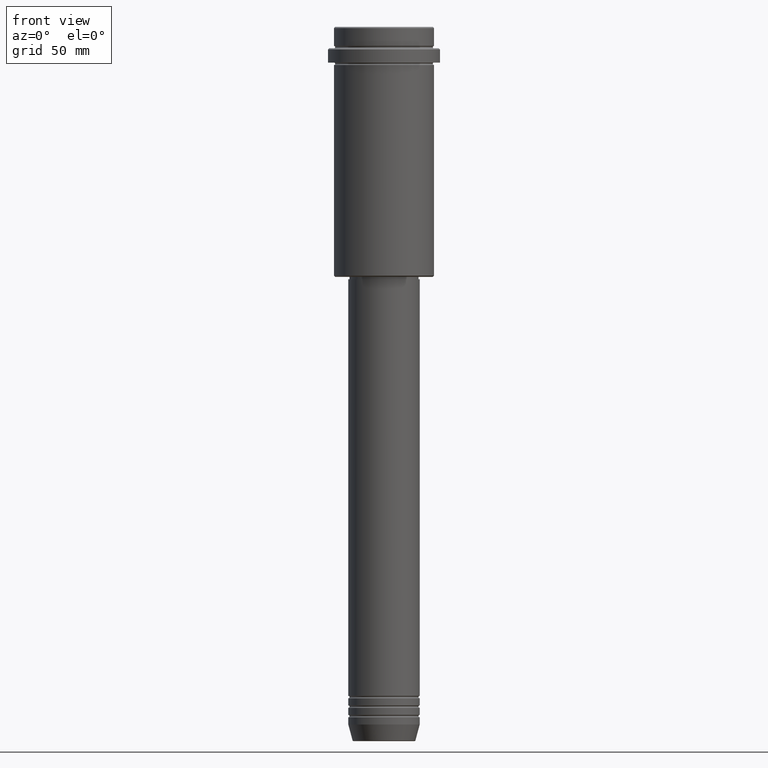
[diagram: clean part render]
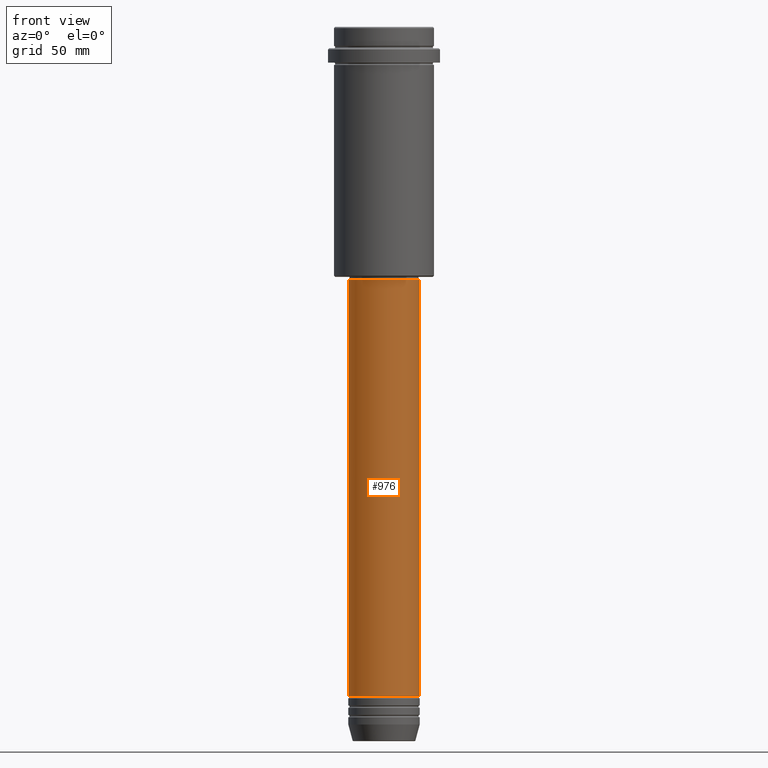
[diagram: same view with one face highlighted and labeled with its STEP entity id]
A machine part, front view. The second image highlights one B-rep face of the part: STEP entity #976.
In plain terms, the highlighted cylindrical surface (edge-blend (fillet) strip) has radius 15 mm, axis along (-0, -0, 1).
Its self-contained STEP definition (entity closure, byte-faithful):
#3 = EDGE_LOOP ( 'NONE', ( #490, #550, #466, #1261 ) ) ;
#137 = AXIS2_PLACEMENT_3D ( 'NONE', #232, #418, #222 ) ;
#222 = DIRECTION ( 'NONE',  ( 1.000000000000000000, 0.000000000000000000, 0.000000000000000000 ) ) ;
#228 = AXIS2_PLACEMENT_3D ( 'NONE', #350, #1356, #1044 ) ;
#232 = CARTESIAN_POINT ( 'NONE',  ( 0.000000000000000000, 0.000000000000000000, 0.000000000000000000 ) ) ;
#283 = VERTEX_POINT ( 'NONE', #499 ) ;
#298 = CARTESIAN_POINT ( 'NONE',  ( -15.00000000000000000, 1.836970198721029589E-15, 0.000000000000000000 ) ) ;
#350 = CARTESIAN_POINT ( 'NONE',  ( 0.000000000000000000, 0.000000000000000000, -280.9999999999999432 ) ) ;
#366 = AXIS2_PLACEMENT_3D ( 'NONE', #813, #471, #894 ) ;
#418 = DIRECTION ( 'NONE',  ( -0.000000000000000000, -0.000000000000000000, 1.000000000000000000 ) ) ;
#466 = ORIENTED_EDGE ( 'NONE', *, *, #796, .T. ) ;
#470 = VERTEX_POINT ( 'NONE', #1085 ) ;
#471 = DIRECTION ( 'NONE',  ( -0.000000000000000000, -0.000000000000000000, 1.000000000000000000 ) ) ;
#490 = ORIENTED_EDGE ( 'NONE', *, *, #1378, .F. ) ;
#499 = CARTESIAN_POINT ( 'NONE',  ( -15.00000000000000000, 1.836970198721029589E-15, -105.9999999999999289 ) ) ;
#528 = CIRCLE ( 'NONE', #228, 15.00000000000000000 ) ;
#550 = ORIENTED_EDGE ( 'NONE', *, *, #676, .T. ) ;
#625 = LINE ( 'NONE', #841, #1303 ) ;
#676 = EDGE_CURVE ( 'NONE', #1372, #470, #528, .T. ) ;
#687 = VERTEX_POINT ( 'NONE', #695 ) ;
#695 = CARTESIAN_POINT ( 'NONE',  ( 15.00000000000000000, 0.000000000000000000, -105.9999999999999289 ) ) ;
#721 = EDGE_CURVE ( 'NONE', #283, #687, #808, .T. ) ;
#741 = DIRECTION ( 'NONE',  ( -0.000000000000000000, -0.000000000000000000, 1.000000000000000000 ) ) ;
#755 = FACE_OUTER_BOUND ( 'NONE', #3, .T. ) ;
#796 = EDGE_CURVE ( 'NONE', #470, #687, #625, .T. ) ;
#808 = CIRCLE ( 'NONE', #366, 15.00000000000000000 ) ;
#813 = CARTESIAN_POINT ( 'NONE',  ( 0.000000000000000000, 0.000000000000000000, -105.9999999999999289 ) ) ;
#839 = CARTESIAN_POINT ( 'NONE',  ( -15.00000000000000000, 1.836970198721029589E-15, -280.9999999999999432 ) ) ;
#841 = CARTESIAN_POINT ( 'NONE',  ( 15.00000000000000000, 0.000000000000000000, 0.000000000000000000 ) ) ;
#894 = DIRECTION ( 'NONE',  ( 1.000000000000000000, 0.000000000000000000, 0.000000000000000000 ) ) ;
#967 = VECTOR ( 'NONE', #741, 1000.000000000000000 ) ;
#976 = ADVANCED_FACE ( 'NONE', ( #755 ), #1092, .T. ) ;
#1044 = DIRECTION ( 'NONE',  ( 1.000000000000000000, 0.000000000000000000, 0.000000000000000000 ) ) ;
#1085 = CARTESIAN_POINT ( 'NONE',  ( 15.00000000000000000, 0.000000000000000000, -280.9999999999999432 ) ) ;
#1092 = CYLINDRICAL_SURFACE ( 'NONE', #137, 15.00000000000000000 ) ;
#1261 = ORIENTED_EDGE ( 'NONE', *, *, #721, .F. ) ;
#1274 = LINE ( 'NONE', #298, #967 ) ;
#1303 = VECTOR ( 'NONE', #1398, 1000.000000000000000 ) ;
#1356 = DIRECTION ( 'NONE',  ( -0.000000000000000000, -0.000000000000000000, 1.000000000000000000 ) ) ;
#1372 = VERTEX_POINT ( 'NONE', #839 ) ;
#1378 = EDGE_CURVE ( 'NONE', #1372, #283, #1274, .T. ) ;
#1398 = DIRECTION ( 'NONE',  ( -0.000000000000000000, -0.000000000000000000, 1.000000000000000000 ) ) ;